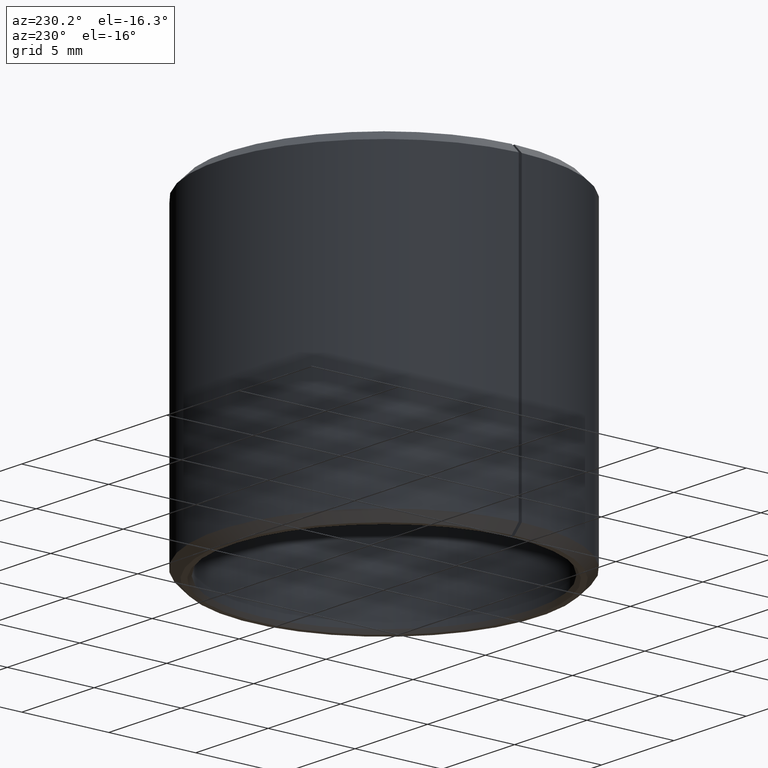
[diagram: clean part render]
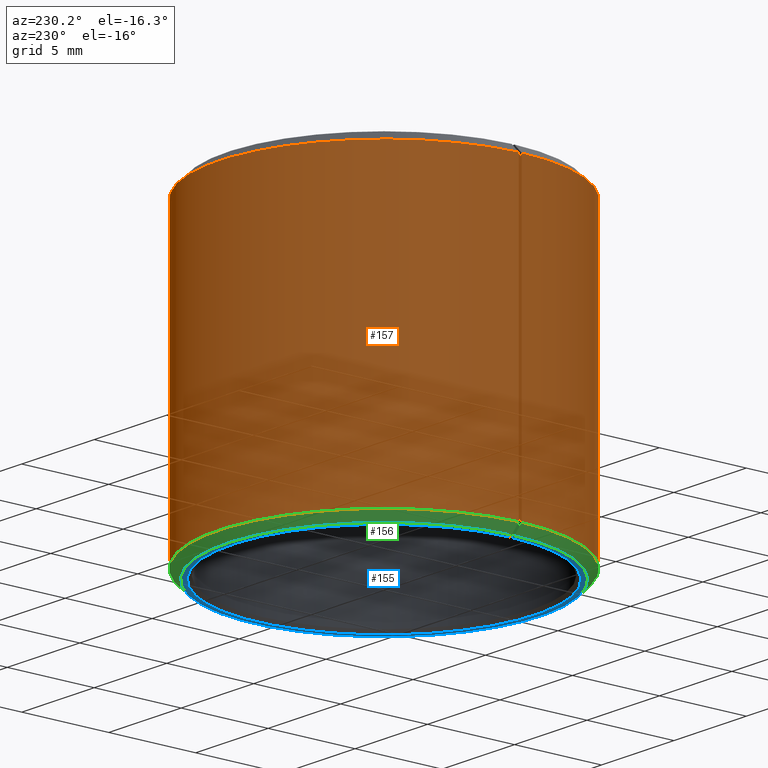
[diagram: same view with three faces highlighted in distinct colors, each labeled with its STEP entity id]
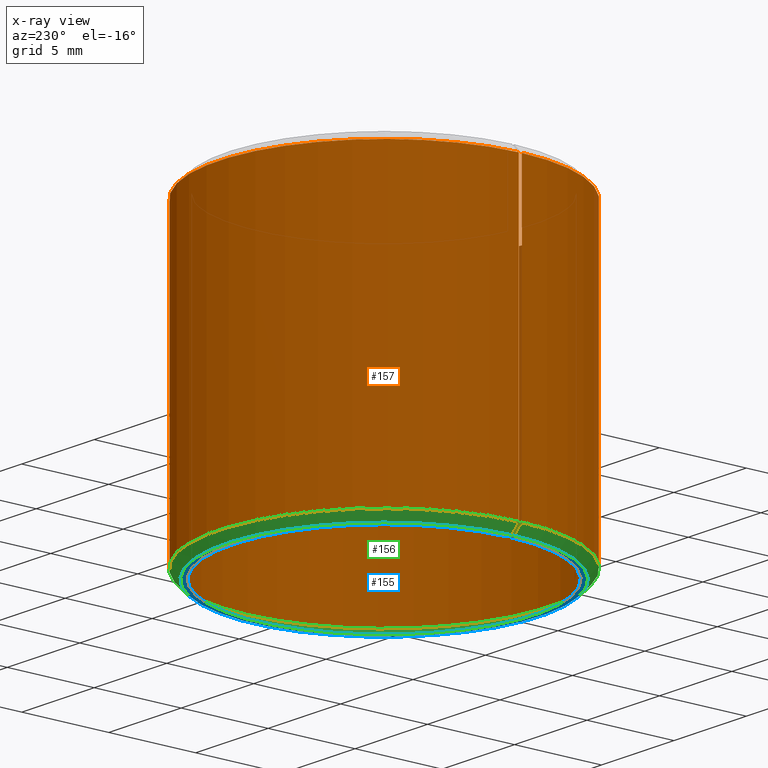
[diagram: x-ray of the same camera — body ghosted, the three highlighted faces saturated]
A machine part, auxiliary view with three faces highlighted in distinct colors.
The next image is the same camera in x-ray (body ghosted, the three faces saturated) — at least one of them is partly hidden behind the body in this view.
Their STEP definitions:

[orange] entity #157 — the highlighted cylindrical surface (partial cylindrical patch) has radius 9.5 mm, axis along (-0, 0, -1).
#157=ADVANCED_FACE('',(#173),#174,.T.);
#173=FACE_OUTER_BOUND('',#194,.T.);
#174=CYLINDRICAL_SURFACE('',#195,0.0095);
#194=EDGE_LOOP('',(#234,#235,#236,#237));
#195=AXIS2_PLACEMENT_3D('',#238,#239,#240);
#234=ORIENTED_EDGE('',*,*,#297,.T.);
#235=ORIENTED_EDGE('',*,*,#298,.F.);
#236=ORIENTED_EDGE('',*,*,#294,.F.);
#237=ORIENTED_EDGE('',*,*,#299,.T.);
#238=CARTESIAN_POINT('',(-3.46944695195362E-018,-2.60208521396521E-018,-5.42101086242752E-020));
#239=DIRECTION('',(6.12323399573677E-017,0.0,-1.0));
#240=DIRECTION('',(-1.0,0.0,-6.12323399573677E-017));
#294=EDGE_CURVE('',#326,#327,#328,.T.);
#297=EDGE_CURVE('',#331,#332,#333,.T.);
#298=EDGE_CURVE('',#327,#332,#334,.T.);
#299=EDGE_CURVE('',#326,#331,#335,.T.);
#326=VERTEX_POINT('',#372);
#327=VERTEX_POINT('',#373);
#328=CIRCLE('',#374,0.0095);
#331=VERTEX_POINT('',#379);
#332=VERTEX_POINT('',#380);
#333=CIRCLE('',#381,0.0095);
#334=LINE('',#382,#383);
#335=LINE('',#384,#385);
#372=CARTESIAN_POINT('',(0.000165797861154191,0.00949855310398572,0.0005));
#373=CARTESIAN_POINT('',(-3.46944695195362E-018,0.0095,0.0005));
#374=AXIS2_PLACEMENT_3D('',#422,#423,#424);
#379=CARTESIAN_POINT('',(0.00016579786115419,0.00949855310398572,0.0175));
#380=CARTESIAN_POINT('',(-4.33680868994202E-018,0.0095,0.0175));
#381=AXIS2_PLACEMENT_3D('',#427,#428,#429);
#382=CARTESIAN_POINT('',(-3.46944695195362E-018,0.0095,0.0005));
#383=VECTOR('',#430,1.0);
#384=CARTESIAN_POINT('',(0.000165797861154191,0.00949855310398572,0.0005));
#385=VECTOR('',#431,1.0);
#422=CARTESIAN_POINT('',(-3.46944695195362E-018,-2.60208521396521E-018,0.0005));
#423=DIRECTION('',(6.12323399573677E-017,0.0,-1.0));
#424=DIRECTION('',(-1.0,0.0,-6.12323399573677E-017));
#427=CARTESIAN_POINT('',(-4.33680868994202E-018,-2.60208521396521E-018,0.0175));
#428=DIRECTION('',(6.12323399573677E-017,0.0,-1.0));
#429=DIRECTION('',(-1.0,0.0,-6.12323399573677E-017));
#430=DIRECTION('',(-5.10212787052002E-017,-1.020425574104E-016,1.0));
#431=DIRECTION('',(-5.28037220851135E-017,-1.02205223425781E-016,1.0));

[blue] entity #155 — the highlighted planar face has unit normal (-0, 0, -1).
#155=ADVANCED_FACE('',(#169),#170,.T.);
#169=FACE_OUTER_BOUND('',#190,.T.);
#170=PLANE('',#191);
#190=EDGE_LOOP('',(#220,#221,#222,#223));
#191=AXIS2_PLACEMENT_3D('',#224,#225,#226);
#220=ORIENTED_EDGE('',*,*,#291,.T.);
#221=ORIENTED_EDGE('',*,*,#292,.F.);
#222=ORIENTED_EDGE('',*,*,#288,.F.);
#223=ORIENTED_EDGE('',*,*,#293,.T.);
#224=CARTESIAN_POINT('',(0.000151835936004364,0.0086986749478606,-6.00566452371932E-019));
#225=DIRECTION('',(6.12323399573677E-017,0.0,-1.0));
#226=DIRECTION('',(-1.0,0.0,-6.12323399573677E-017));
#288=EDGE_CURVE('',#316,#317,#318,.T.);
#291=EDGE_CURVE('',#321,#322,#323,.T.);
#292=EDGE_CURVE('',#317,#322,#324,.T.);
#293=EDGE_CURVE('',#316,#321,#325,.T.);
#316=VERTEX_POINT('',#358);
#317=VERTEX_POINT('',#359);
#318=CIRCLE('',#360,0.0087);
#321=VERTEX_POINT('',#365);
#322=VERTEX_POINT('',#366);
#323=CIRCLE('',#367,0.009);
#324=LINE('',#368,#369);
#325=LINE('',#370,#371);
#358=CARTESIAN_POINT('',(0.000151835936004364,0.0086986749478606,-6.14118979528001E-019));
#359=CARTESIAN_POINT('',(-3.46944695195362E-018,0.0087,-6.23416249179165E-019));
#360=AXIS2_PLACEMENT_3D('',#412,#413,#414);
#365=CARTESIAN_POINT('',(0.000157071657935549,0.00899862925640752,-5.8669332971065E-019));
#366=CARTESIAN_POINT('',(-3.46944695195362E-018,0.009,-5.96311194867027E-019));
#367=AXIS2_PLACEMENT_3D('',#417,#418,#419);
#368=CARTESIAN_POINT('',(-3.46944695195362E-018,0.0087,-6.42040572215005E-019));
#369=VECTOR('',#420,1.0);
#370=CARTESIAN_POINT('',(0.000151835936004364,0.0086986749478606,-6.32743302563841E-019));
#371=VECTOR('',#421,1.0);
#412=CARTESIAN_POINT('',(-3.46944695195362E-018,-2.60208521396521E-018,-6.23416249179165E-019));
#413=DIRECTION('',(6.12323399573677E-017,0.0,-1.0));
#414=DIRECTION('',(-1.0,0.0,-6.12323399573677E-017));
#417=CARTESIAN_POINT('',(-3.46944695195362E-018,-2.60208521396521E-018,-5.96311194867027E-019));
#418=DIRECTION('',(6.12323399573677E-017,0.0,-1.0));
#419=DIRECTION('',(-1.0,0.0,-6.12323399573677E-017));
#420=DIRECTION('',(0.0,1.0,1.52431257826591E-016));
#421=DIRECTION('',(0.0174524064372836,0.999847695156391,1.53499909510634E-016));

[green] entity #156 — the highlighted conical surface has half-angle 45 deg.
#156=ADVANCED_FACE('',(#171),#172,.T.);
#171=FACE_OUTER_BOUND('',#192,.T.);
#172=CONICAL_SURFACE('',#193,0.009,0.785398163397448);
#192=EDGE_LOOP('',(#227,#228,#229,#230));
#193=AXIS2_PLACEMENT_3D('',#231,#232,#233);
#227=ORIENTED_EDGE('',*,*,#294,.T.);
#228=ORIENTED_EDGE('',*,*,#295,.F.);
#229=ORIENTED_EDGE('',*,*,#291,.F.);
#230=ORIENTED_EDGE('',*,*,#296,.T.);
#231=CARTESIAN_POINT('',(-3.46944695195362E-018,-2.60208521396521E-018,-5.96311194867027E-019));
#232=DIRECTION('',(-6.12323399573677E-017,0.0,1.0));
#233=DIRECTION('',(1.0,0.0,6.12323399573677E-017));
#291=EDGE_CURVE('',#321,#322,#323,.T.);
#294=EDGE_CURVE('',#326,#327,#328,.T.);
#295=EDGE_CURVE('',#322,#327,#329,.T.);
#296=EDGE_CURVE('',#321,#326,#330,.T.);
#321=VERTEX_POINT('',#365);
#322=VERTEX_POINT('',#366);
#323=CIRCLE('',#367,0.009);
#326=VERTEX_POINT('',#372);
#327=VERTEX_POINT('',#373);
#328=CIRCLE('',#374,0.0095);
#329=LINE('',#375,#376);
#330=LINE('',#377,#378);
#365=CARTESIAN_POINT('',(0.000157071657935549,0.00899862925640752,-5.8669332971065E-019));
#366=CARTESIAN_POINT('',(-3.46944695195362E-018,0.009,-5.96311194867027E-019));
#367=AXIS2_PLACEMENT_3D('',#417,#418,#419);
#372=CARTESIAN_POINT('',(0.000165797861154191,0.00949855310398572,0.0005));
#373=CARTESIAN_POINT('',(-3.46944695195362E-018,0.0095,0.0005));
#374=AXIS2_PLACEMENT_3D('',#422,#423,#424);
#375=CARTESIAN_POINT('',(-3.46944695195362E-018,0.009,-5.96311194867027E-019));
#376=VECTOR('',#425,1.0);
#377=CARTESIAN_POINT('',(0.000157071657935549,0.00899862925640752,-5.8669332971065E-019));
#378=VECTOR('',#426,1.0);
#417=CARTESIAN_POINT('',(-3.46944695195362E-018,-2.60208521396521E-018,-5.96311194867027E-019));
#418=DIRECTION('',(6.12323399573677E-017,0.0,-1.0));
#419=DIRECTION('',(-1.0,0.0,-6.12323399573677E-017));
#422=CARTESIAN_POINT('',(-3.46944695195362E-018,-2.60208521396521E-018,0.0005));
#423=DIRECTION('',(6.12323399573677E-017,0.0,-1.0));
#424=DIRECTION('',(-1.0,0.0,-6.12323399573677E-017));
#425=DIRECTION('',(0.0,0.707106781186547,0.707106781186548));
#426=DIRECTION('',(0.0123407149398269,0.706999085398824,0.707106781186548));